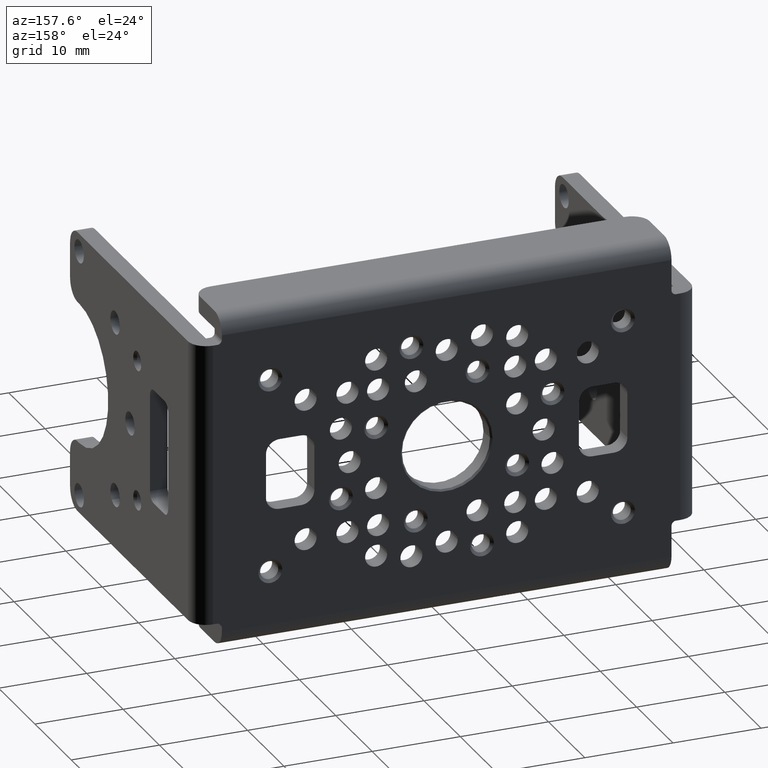
[diagram: clean part render]
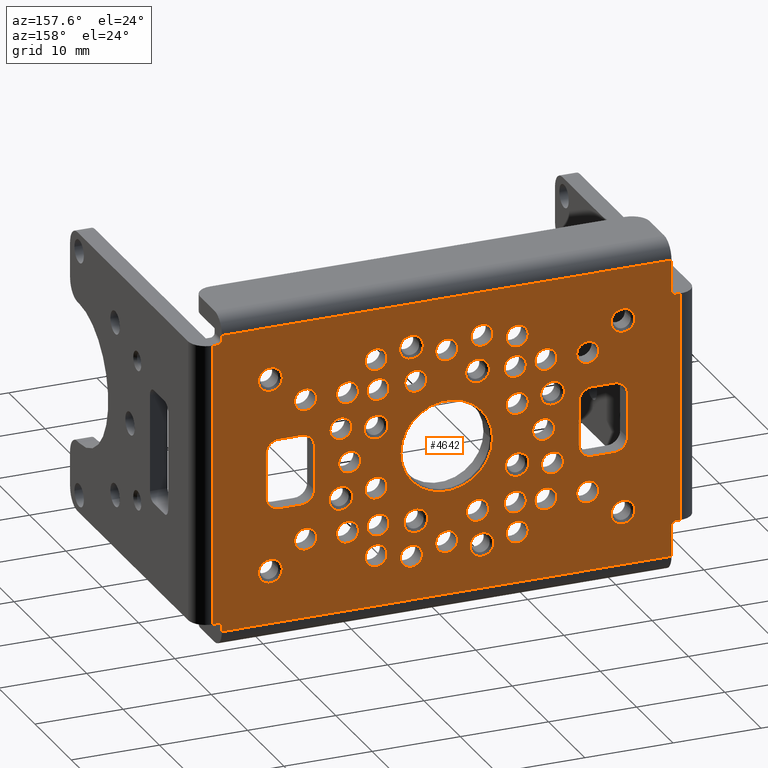
[diagram: same view with one face highlighted and labeled with its STEP entity id]
A machine part, auxiliary view. The second image highlights one B-rep face of the part: STEP entity #4642.
In plain terms, the highlighted planar face has unit normal (0, -1, 0).
Its self-contained STEP definition (entity closure, byte-faithful):
#741=DIRECTION('',(0.E0,0.E0,-1.E0));
#742=VECTOR('',#741,2.6E1);
#743=CARTESIAN_POINT('',(-2.65E1,2.E0,1.3E1));
#744=LINE('',#743,#742);
#755=DIRECTION('',(0.E0,0.E0,1.E0));
#756=VECTOR('',#755,5.E-1);
#757=CARTESIAN_POINT('',(2.55E1,2.E0,-1.7E1));
#758=LINE('',#757,#756);
#759=DIRECTION('',(-1.E0,0.E0,0.E0));
#760=VECTOR('',#759,5.E-1);
#761=CARTESIAN_POINT('',(2.65E1,2.E0,-1.6E1));
#762=LINE('',#761,#760);
#763=DIRECTION('',(-1.E0,0.E0,0.E0));
#764=VECTOR('',#763,5.E-1);
#765=CARTESIAN_POINT('',(2.65E1,2.E0,1.6E1));
#766=LINE('',#765,#764);
#767=DIRECTION('',(0.E0,0.E0,-1.E0));
#768=VECTOR('',#767,5.E-1);
#769=CARTESIAN_POINT('',(2.55E1,2.E0,1.7E1));
#770=LINE('',#769,#768);
#771=DIRECTION('',(0.E0,0.E0,-1.E0));
#772=VECTOR('',#771,3.5E0);
#773=CARTESIAN_POINT('',(-2.55E1,2.E0,1.7E1));
#774=LINE('',#773,#772);
#775=DIRECTION('',(1.E0,0.E0,0.E0));
#776=VECTOR('',#775,5.E-1);
#777=CARTESIAN_POINT('',(-2.65E1,2.E0,1.3E1));
#778=LINE('',#777,#776);
#779=DIRECTION('',(1.E0,0.E0,0.E0));
#780=VECTOR('',#779,5.E-1);
#781=CARTESIAN_POINT('',(-2.65E1,2.E0,-1.3E1));
#782=LINE('',#781,#780);
#783=DIRECTION('',(0.E0,0.E0,1.E0));
#784=VECTOR('',#783,3.5E0);
#785=CARTESIAN_POINT('',(-2.55E1,2.E0,-1.7E1));
#786=LINE('',#785,#784);
#787=DIRECTION('',(0.E0,0.E0,-1.E0));
#788=VECTOR('',#787,5.E0);
#789=CARTESIAN_POINT('',(-1.5E1,2.E0,2.5E0));
#790=LINE('',#789,#788);
#791=DIRECTION('',(-1.E0,0.E0,0.E0));
#792=VECTOR('',#791,2.5E0);
#793=CARTESIAN_POINT('',(-1.65E1,2.E0,-4.E0));
#794=LINE('',#793,#792);
#795=DIRECTION('',(0.E0,0.E0,1.E0));
#796=VECTOR('',#795,5.E0);
#797=CARTESIAN_POINT('',(-2.05E1,2.E0,-2.5E0));
#798=LINE('',#797,#796);
#799=DIRECTION('',(1.E0,0.E0,0.E0));
#800=VECTOR('',#799,2.5E0);
#801=CARTESIAN_POINT('',(-1.9E1,2.E0,4.E0));
#802=LINE('',#801,#800);
#803=DIRECTION('',(0.E0,0.E0,1.E0));
#804=VECTOR('',#803,5.E0);
#805=CARTESIAN_POINT('',(2.05E1,2.E0,-2.5E0));
#806=LINE('',#805,#804);
#807=DIRECTION('',(1.E0,0.E0,0.E0));
#808=VECTOR('',#807,2.5E0);
#809=CARTESIAN_POINT('',(1.65E1,2.E0,-4.E0));
#810=LINE('',#809,#808);
#811=DIRECTION('',(0.E0,0.E0,-1.E0));
#812=VECTOR('',#811,5.E0);
#813=CARTESIAN_POINT('',(1.5E1,2.E0,2.5E0));
#814=LINE('',#813,#812);
#815=DIRECTION('',(-1.E0,0.E0,0.E0));
#816=VECTOR('',#815,2.5E0);
#817=CARTESIAN_POINT('',(1.9E1,2.E0,4.E0));
#818=LINE('',#817,#816);
#819=CARTESIAN_POINT('',(0.E0,2.E0,-1.1E1));
#820=DIRECTION('',(0.E0,-1.E0,0.E0));
#821=DIRECTION('',(1.E0,0.E0,0.E0));
#822=AXIS2_PLACEMENT_3D('',#819,#820,#821);
#824=CARTESIAN_POINT('',(0.E0,2.E0,-1.1E1));
#825=DIRECTION('',(0.E0,-1.E0,0.E0));
#826=DIRECTION('',(-1.E0,0.E0,0.E0));
#827=AXIS2_PLACEMENT_3D('',#824,#825,#826);
#829=CARTESIAN_POINT('',(7.778174593052E0,2.E0,-7.778174593052E0));
#830=DIRECTION('',(0.E0,-1.E0,0.E0));
#831=DIRECTION('',(7.071067811865E-1,0.E0,7.071067811865E-1));
#832=AXIS2_PLACEMENT_3D('',#829,#830,#831);
#834=CARTESIAN_POINT('',(7.778174593052E0,2.E0,-7.778174593052E0));
#835=DIRECTION('',(0.E0,-1.E0,0.E0));
#836=DIRECTION('',(-7.071067811865E-1,0.E0,-7.071067811865E-1));
#837=AXIS2_PLACEMENT_3D('',#834,#835,#836);
#839=CARTESIAN_POINT('',(1.1E1,2.E0,0.E0));
#840=DIRECTION('',(0.E0,-1.E0,0.E0));
#841=DIRECTION('',(0.E0,0.E0,1.E0));
#842=AXIS2_PLACEMENT_3D('',#839,#840,#841);
#844=CARTESIAN_POINT('',(1.1E1,2.E0,0.E0));
#845=DIRECTION('',(0.E0,-1.E0,0.E0));
#846=DIRECTION('',(0.E0,0.E0,-1.E0));
#847=AXIS2_PLACEMENT_3D('',#844,#845,#846);
#849=CARTESIAN_POINT('',(7.778174593052E0,2.E0,7.778174593052E0));
#850=DIRECTION('',(0.E0,-1.E0,0.E0));
#851=DIRECTION('',(-7.071067811865E-1,0.E0,7.071067811865E-1));
#852=AXIS2_PLACEMENT_3D('',#849,#850,#851);
#854=CARTESIAN_POINT('',(7.778174593052E0,2.E0,7.778174593052E0));
#855=DIRECTION('',(0.E0,-1.E0,0.E0));
#856=DIRECTION('',(7.071067811865E-1,0.E0,-7.071067811865E-1));
#857=AXIS2_PLACEMENT_3D('',#854,#855,#856);
#859=CARTESIAN_POINT('',(0.E0,2.E0,1.1E1));
#860=DIRECTION('',(0.E0,-1.E0,0.E0));
#861=DIRECTION('',(-1.E0,0.E0,0.E0));
#862=AXIS2_PLACEMENT_3D('',#859,#860,#861);
#864=CARTESIAN_POINT('',(0.E0,2.E0,1.1E1));
#865=DIRECTION('',(0.E0,-1.E0,0.E0));
#866=DIRECTION('',(1.E0,0.E0,0.E0));
#867=AXIS2_PLACEMENT_3D('',#864,#865,#866);
#869=CARTESIAN_POINT('',(-7.778174593052E0,2.E0,7.778174593052E0));
#870=DIRECTION('',(0.E0,-1.E0,0.E0));
#871=DIRECTION('',(-7.071067811865E-1,0.E0,-7.071067811865E-1));
#872=AXIS2_PLACEMENT_3D('',#869,#870,#871);
#874=CARTESIAN_POINT('',(-7.778174593052E0,2.E0,7.778174593052E0));
#875=DIRECTION('',(0.E0,-1.E0,0.E0));
#876=DIRECTION('',(7.071067811865E-1,0.E0,7.071067811865E-1));
#877=AXIS2_PLACEMENT_3D('',#874,#875,#876);
#879=CARTESIAN_POINT('',(-1.1E1,2.E0,0.E0));
#880=DIRECTION('',(0.E0,-1.E0,0.E0));
#881=DIRECTION('',(0.E0,0.E0,-1.E0));
#882=AXIS2_PLACEMENT_3D('',#879,#880,#881);
#884=CARTESIAN_POINT('',(-1.1E1,2.E0,0.E0));
#885=DIRECTION('',(0.E0,-1.E0,0.E0));
#886=DIRECTION('',(0.E0,0.E0,1.E0));
#887=AXIS2_PLACEMENT_3D('',#884,#885,#886);
#889=CARTESIAN_POINT('',(-7.778174593052E0,2.E0,-7.778174593052E0));
#890=DIRECTION('',(0.E0,-1.E0,0.E0));
#891=DIRECTION('',(7.071067811865E-1,0.E0,-7.071067811865E-1));
#892=AXIS2_PLACEMENT_3D('',#889,#890,#891);
#894=CARTESIAN_POINT('',(-7.778174593052E0,2.E0,-7.778174593052E0));
#895=DIRECTION('',(0.E0,-1.E0,0.E0));
#896=DIRECTION('',(-7.071067811865E-1,0.E0,7.071067811865E-1));
#897=AXIS2_PLACEMENT_3D('',#894,#895,#896);
#899=CARTESIAN_POINT('',(3.5E0,2.E0,-8.E0));
#900=DIRECTION('',(0.E0,1.E0,0.E0));
#901=DIRECTION('',(1.E0,0.E0,0.E0));
#902=AXIS2_PLACEMENT_3D('',#899,#900,#901);
#904=CARTESIAN_POINT('',(3.5E0,2.E0,-8.E0));
#905=DIRECTION('',(0.E0,1.E0,0.E0));
#906=DIRECTION('',(-1.E0,0.E0,0.E0));
#907=AXIS2_PLACEMENT_3D('',#904,#905,#906);
#909=CARTESIAN_POINT('',(-3.5E0,2.E0,-8.E0));
#910=DIRECTION('',(0.E0,-1.E0,0.E0));
#911=DIRECTION('',(1.E0,0.E0,0.E0));
#912=AXIS2_PLACEMENT_3D('',#909,#910,#911);
#914=CARTESIAN_POINT('',(-3.5E0,2.E0,-8.E0));
#915=DIRECTION('',(0.E0,-1.E0,0.E0));
#916=DIRECTION('',(-1.E0,0.E0,0.E0));
#917=AXIS2_PLACEMENT_3D('',#914,#915,#916);
#919=CARTESIAN_POINT('',(8.E0,2.E0,3.5E0));
#920=DIRECTION('',(0.E0,1.E0,0.E0));
#921=DIRECTION('',(0.E0,0.E0,1.E0));
#922=AXIS2_PLACEMENT_3D('',#919,#920,#921);
#924=CARTESIAN_POINT('',(8.E0,2.E0,3.5E0));
#925=DIRECTION('',(0.E0,1.E0,0.E0));
#926=DIRECTION('',(0.E0,0.E0,-1.E0));
#927=AXIS2_PLACEMENT_3D('',#924,#925,#926);
#929=CARTESIAN_POINT('',(8.E0,2.E0,-3.5E0));
#930=DIRECTION('',(0.E0,-1.E0,0.E0));
#931=DIRECTION('',(0.E0,0.E0,1.E0));
#932=AXIS2_PLACEMENT_3D('',#929,#930,#931);
#934=CARTESIAN_POINT('',(8.E0,2.E0,-3.5E0));
#935=DIRECTION('',(0.E0,-1.E0,0.E0));
#936=DIRECTION('',(0.E0,0.E0,-1.E0));
#937=AXIS2_PLACEMENT_3D('',#934,#935,#936);
#939=CARTESIAN_POINT('',(-3.5E0,2.E0,8.E0));
#940=DIRECTION('',(0.E0,1.E0,0.E0));
#941=DIRECTION('',(-1.E0,0.E0,0.E0));
#942=AXIS2_PLACEMENT_3D('',#939,#940,#941);
#944=CARTESIAN_POINT('',(-3.5E0,2.E0,8.E0));
#945=DIRECTION('',(0.E0,1.E0,0.E0));
#946=DIRECTION('',(1.E0,0.E0,0.E0));
#947=AXIS2_PLACEMENT_3D('',#944,#945,#946);
#949=CARTESIAN_POINT('',(3.5E0,2.E0,8.E0));
#950=DIRECTION('',(0.E0,-1.E0,0.E0));
#951=DIRECTION('',(-1.E0,0.E0,0.E0));
#952=AXIS2_PLACEMENT_3D('',#949,#950,#951);
#954=CARTESIAN_POINT('',(3.5E0,2.E0,8.E0));
#955=DIRECTION('',(0.E0,-1.E0,0.E0));
#956=DIRECTION('',(1.E0,0.E0,0.E0));
#957=AXIS2_PLACEMENT_3D('',#954,#955,#956);
#959=CARTESIAN_POINT('',(-8.E0,2.E0,-3.5E0));
#960=DIRECTION('',(0.E0,1.E0,0.E0));
#961=DIRECTION('',(0.E0,0.E0,-1.E0));
#962=AXIS2_PLACEMENT_3D('',#959,#960,#961);
#964=CARTESIAN_POINT('',(-8.E0,2.E0,-3.5E0));
#965=DIRECTION('',(0.E0,1.E0,0.E0));
#966=DIRECTION('',(0.E0,0.E0,1.E0));
#967=AXIS2_PLACEMENT_3D('',#964,#965,#966);
#969=CARTESIAN_POINT('',(-8.E0,2.E0,3.5E0));
#970=DIRECTION('',(0.E0,-1.E0,0.E0));
#971=DIRECTION('',(0.E0,0.E0,-1.E0));
#972=AXIS2_PLACEMENT_3D('',#969,#970,#971);
#974=CARTESIAN_POINT('',(-8.E0,2.E0,3.5E0));
#975=DIRECTION('',(0.E0,-1.E0,0.E0));
#976=DIRECTION('',(0.E0,0.E0,1.E0));
#977=AXIS2_PLACEMENT_3D('',#974,#975,#976);
#979=CARTESIAN_POINT('',(1.6E1,2.E0,-8.E0));
#980=DIRECTION('',(0.E0,-1.E0,0.E0));
#981=DIRECTION('',(1.E0,0.E0,0.E0));
#982=AXIS2_PLACEMENT_3D('',#979,#980,#981);
#984=CARTESIAN_POINT('',(1.6E1,2.E0,-8.E0));
#985=DIRECTION('',(0.E0,-1.E0,0.E0));
#986=DIRECTION('',(-1.E0,0.E0,0.E0));
#987=AXIS2_PLACEMENT_3D('',#984,#985,#986);
#989=CARTESIAN_POINT('',(1.6E1,2.E0,8.E0));
#990=DIRECTION('',(0.E0,1.E0,0.E0));
#991=DIRECTION('',(1.E0,0.E0,0.E0));
#992=AXIS2_PLACEMENT_3D('',#989,#990,#991);
#994=CARTESIAN_POINT('',(1.6E1,2.E0,8.E0));
#995=DIRECTION('',(0.E0,1.E0,0.E0));
#996=DIRECTION('',(-1.E0,0.E0,0.E0));
#997=AXIS2_PLACEMENT_3D('',#994,#995,#996);
#999=CARTESIAN_POINT('',(-1.6E1,2.E0,-8.E0));
#1000=DIRECTION('',(0.E0,1.E0,0.E0));
#1001=DIRECTION('',(-1.E0,0.E0,0.E0));
#1002=AXIS2_PLACEMENT_3D('',#999,#1000,#1001);
#1004=CARTESIAN_POINT('',(-1.6E1,2.E0,-8.E0));
#1005=DIRECTION('',(0.E0,1.E0,0.E0));
#1006=DIRECTION('',(1.E0,0.E0,0.E0));
#1007=AXIS2_PLACEMENT_3D('',#1004,#1005,#1006);
#1009=CARTESIAN_POINT('',(-1.6E1,2.E0,8.E0));
#1010=DIRECTION('',(0.E0,-1.E0,0.E0));
#1011=DIRECTION('',(-1.E0,0.E0,0.E0));
#1012=AXIS2_PLACEMENT_3D('',#1009,#1010,#1011);
#1014=CARTESIAN_POINT('',(-1.6E1,2.E0,8.E0));
#1015=DIRECTION('',(0.E0,-1.E0,0.E0));
#1016=DIRECTION('',(1.E0,0.E0,0.E0));
#1017=AXIS2_PLACEMENT_3D('',#1014,#1015,#1016);
#1019=CARTESIAN_POINT('',(8.E0,2.E0,-1.125E1));
#1020=DIRECTION('',(0.E0,-1.E0,0.E0));
#1021=DIRECTION('',(1.E0,0.E0,0.E0));
#1022=AXIS2_PLACEMENT_3D('',#1019,#1020,#1021);
#1024=CARTESIAN_POINT('',(8.E0,2.E0,-1.125E1));
#1025=DIRECTION('',(0.E0,-1.E0,0.E0));
#1026=DIRECTION('',(-1.E0,0.E0,0.E0));
#1027=AXIS2_PLACEMENT_3D('',#1024,#1025,#1026);
#1029=CARTESIAN_POINT('',(-8.E0,2.E0,-1.125E1));
#1030=DIRECTION('',(0.E0,1.E0,0.E0));
#1031=DIRECTION('',(-1.E0,0.E0,0.E0));
#1032=AXIS2_PLACEMENT_3D('',#1029,#1030,#1031);
#1034=CARTESIAN_POINT('',(-8.E0,2.E0,-1.125E1));
#1035=DIRECTION('',(0.E0,1.E0,0.E0));
#1036=DIRECTION('',(1.E0,0.E0,0.E0));
#1037=AXIS2_PLACEMENT_3D('',#1034,#1035,#1036);
#1039=CARTESIAN_POINT('',(1.125E1,2.E0,8.E0));
#1040=DIRECTION('',(0.E0,-1.E0,0.E0));
#1041=DIRECTION('',(0.E0,0.E0,1.E0));
#1042=AXIS2_PLACEMENT_3D('',#1039,#1040,#1041);
#1044=CARTESIAN_POINT('',(1.125E1,2.E0,8.E0));
#1045=DIRECTION('',(0.E0,-1.E0,0.E0));
#1046=DIRECTION('',(0.E0,0.E0,-1.E0));
#1047=AXIS2_PLACEMENT_3D('',#1044,#1045,#1046);
#1049=CARTESIAN_POINT('',(1.125E1,2.E0,-8.E0));
#1050=DIRECTION('',(0.E0,1.E0,0.E0));
#1051=DIRECTION('',(0.E0,0.E0,-1.E0));
#1052=AXIS2_PLACEMENT_3D('',#1049,#1050,#1051);
#1054=CARTESIAN_POINT('',(1.125E1,2.E0,-8.E0));
#1055=DIRECTION('',(0.E0,1.E0,0.E0));
#1056=DIRECTION('',(0.E0,0.E0,1.E0));
#1057=AXIS2_PLACEMENT_3D('',#1054,#1055,#1056);
#1059=CARTESIAN_POINT('',(-8.E0,2.E0,1.125E1));
#1060=DIRECTION('',(0.E0,-1.E0,0.E0));
#1061=DIRECTION('',(-1.E0,0.E0,0.E0));
#1062=AXIS2_PLACEMENT_3D('',#1059,#1060,#1061);
#1064=CARTESIAN_POINT('',(-8.E0,2.E0,1.125E1));
#1065=DIRECTION('',(0.E0,-1.E0,0.E0));
#1066=DIRECTION('',(1.E0,0.E0,0.E0));
#1067=AXIS2_PLACEMENT_3D('',#1064,#1065,#1066);
#1069=CARTESIAN_POINT('',(8.E0,2.E0,1.125E1));
#1070=DIRECTION('',(0.E0,1.E0,0.E0));
#1071=DIRECTION('',(1.E0,0.E0,0.E0));
#1072=AXIS2_PLACEMENT_3D('',#1069,#1070,#1071);
#1074=CARTESIAN_POINT('',(8.E0,2.E0,1.125E1));
#1075=DIRECTION('',(0.E0,1.E0,0.E0));
#1076=DIRECTION('',(-1.E0,0.E0,0.E0));
#1077=AXIS2_PLACEMENT_3D('',#1074,#1075,#1076);
#1079=CARTESIAN_POINT('',(-1.125E1,2.E0,-8.E0));
#1080=DIRECTION('',(0.E0,-1.E0,0.E0));
#1081=DIRECTION('',(0.E0,0.E0,-1.E0));
#1082=AXIS2_PLACEMENT_3D('',#1079,#1080,#1081);
#1084=CARTESIAN_POINT('',(-1.125E1,2.E0,-8.E0));
#1085=DIRECTION('',(0.E0,-1.E0,0.E0));
#1086=DIRECTION('',(0.E0,0.E0,1.E0));
#1087=AXIS2_PLACEMENT_3D('',#1084,#1085,#1086);
#1089=CARTESIAN_POINT('',(-1.125E1,2.E0,8.E0));
#1090=DIRECTION('',(0.E0,1.E0,0.E0));
#1091=DIRECTION('',(0.E0,0.E0,1.E0));
#1092=AXIS2_PLACEMENT_3D('',#1089,#1090,#1091);
#1094=CARTESIAN_POINT('',(-1.125E1,2.E0,8.E0));
#1095=DIRECTION('',(0.E0,1.E0,0.E0));
#1096=DIRECTION('',(0.E0,0.E0,-1.E0));
#1097=AXIS2_PLACEMENT_3D('',#1094,#1095,#1096);
#1099=CARTESIAN_POINT('',(0.E0,2.E0,0.E0));
#1100=DIRECTION('',(0.E0,-1.E0,0.E0));
#1101=DIRECTION('',(-1.E0,0.E0,0.E0));
#1102=AXIS2_PLACEMENT_3D('',#1099,#1100,#1101);
#1104=CARTESIAN_POINT('',(0.E0,2.E0,-2.886579864025E-14));
#1105=DIRECTION('',(0.E0,-1.E0,0.E0));
#1106=DIRECTION('',(1.E0,0.E0,0.E0));
#1107=AXIS2_PLACEMENT_3D('',#1104,#1105,#1106);
#1109=CARTESIAN_POINT('',(1.2E1,2.E0,-4.E0));
#1110=DIRECTION('',(0.E0,1.E0,0.E0));
#1111=DIRECTION('',(1.E0,0.E0,0.E0));
#1112=AXIS2_PLACEMENT_3D('',#1109,#1110,#1111);
#1114=CARTESIAN_POINT('',(1.2E1,2.E0,-4.E0));
#1115=DIRECTION('',(0.E0,1.E0,0.E0));
#1116=DIRECTION('',(-1.E0,0.E0,0.E0));
#1117=AXIS2_PLACEMENT_3D('',#1114,#1115,#1116);
#1119=CARTESIAN_POINT('',(4.E0,2.E0,1.2E1));
#1120=DIRECTION('',(0.E0,1.E0,0.E0));
#1121=DIRECTION('',(0.E0,0.E0,1.E0));
#1122=AXIS2_PLACEMENT_3D('',#1119,#1120,#1121);
#1124=CARTESIAN_POINT('',(4.E0,2.E0,1.2E1));
#1125=DIRECTION('',(0.E0,1.E0,0.E0));
#1126=DIRECTION('',(0.E0,0.E0,-1.E0));
#1127=AXIS2_PLACEMENT_3D('',#1124,#1125,#1126);
#1129=CARTESIAN_POINT('',(-1.2E1,2.E0,4.E0));
#1130=DIRECTION('',(0.E0,1.E0,0.E0));
#1131=DIRECTION('',(-1.E0,0.E0,0.E0));
#1132=AXIS2_PLACEMENT_3D('',#1129,#1130,#1131);
#1134=CARTESIAN_POINT('',(-1.2E1,2.E0,4.E0));
#1135=DIRECTION('',(0.E0,1.E0,0.E0));
#1136=DIRECTION('',(1.E0,0.E0,0.E0));
#1137=AXIS2_PLACEMENT_3D('',#1134,#1135,#1136);
#1139=CARTESIAN_POINT('',(-4.E0,2.E0,-1.2E1));
#1140=DIRECTION('',(0.E0,1.E0,0.E0));
#1141=DIRECTION('',(0.E0,0.E0,-1.E0));
#1142=AXIS2_PLACEMENT_3D('',#1139,#1140,#1141);
#1144=CARTESIAN_POINT('',(-4.E0,2.E0,-1.2E1));
#1145=DIRECTION('',(0.E0,1.E0,0.E0));
#1146=DIRECTION('',(0.E0,0.E0,1.E0));
#1147=AXIS2_PLACEMENT_3D('',#1144,#1145,#1146);
#1149=CARTESIAN_POINT('',(1.2E1,2.E0,4.E0));
#1150=DIRECTION('',(0.E0,-1.E0,0.E0));
#1151=DIRECTION('',(1.E0,0.E0,0.E0));
#1152=AXIS2_PLACEMENT_3D('',#1149,#1150,#1151);
#1154=CARTESIAN_POINT('',(1.2E1,2.E0,4.E0));
#1155=DIRECTION('',(0.E0,-1.E0,0.E0));
#1156=DIRECTION('',(-1.E0,0.E0,0.E0));
#1157=AXIS2_PLACEMENT_3D('',#1154,#1155,#1156);
#1159=CARTESIAN_POINT('',(-4.E0,2.E0,1.2E1));
#1160=DIRECTION('',(0.E0,-1.E0,0.E0));
#1161=DIRECTION('',(0.E0,0.E0,1.E0));
#1162=AXIS2_PLACEMENT_3D('',#1159,#1160,#1161);
#1164=CARTESIAN_POINT('',(-4.E0,2.E0,1.2E1));
#1165=DIRECTION('',(0.E0,-1.E0,0.E0));
#1166=DIRECTION('',(0.E0,0.E0,-1.E0));
#1167=AXIS2_PLACEMENT_3D('',#1164,#1165,#1166);
#1169=CARTESIAN_POINT('',(-1.2E1,2.E0,-4.E0));
#1170=DIRECTION('',(0.E0,-1.E0,0.E0));
#1171=DIRECTION('',(-1.E0,0.E0,0.E0));
#1172=AXIS2_PLACEMENT_3D('',#1169,#1170,#1171);
#1174=CARTESIAN_POINT('',(-1.2E1,2.E0,-4.E0));
#1175=DIRECTION('',(0.E0,-1.E0,0.E0));
#1176=DIRECTION('',(1.E0,0.E0,0.E0));
#1177=AXIS2_PLACEMENT_3D('',#1174,#1175,#1176);
#1179=CARTESIAN_POINT('',(4.E0,2.E0,-1.2E1));
#1180=DIRECTION('',(0.E0,-1.E0,0.E0));
#1181=DIRECTION('',(0.E0,0.E0,-1.E0));
#1182=AXIS2_PLACEMENT_3D('',#1179,#1180,#1181);
#1184=CARTESIAN_POINT('',(4.E0,2.E0,-1.2E1));
#1185=DIRECTION('',(0.E0,-1.E0,0.E0));
#1186=DIRECTION('',(0.E0,0.E0,1.E0));
#1187=AXIS2_PLACEMENT_3D('',#1184,#1185,#1186);
#1189=CARTESIAN_POINT('',(-2.E1,2.E0,-1.1E1));
#1190=DIRECTION('',(0.E0,1.E0,0.E0));
#1191=DIRECTION('',(1.E0,0.E0,0.E0));
#1192=AXIS2_PLACEMENT_3D('',#1189,#1190,#1191);
#1194=CARTESIAN_POINT('',(-2.E1,2.E0,-1.1E1));
#1195=DIRECTION('',(0.E0,1.E0,0.E0));
#1196=DIRECTION('',(-1.E0,0.E0,0.E0));
#1197=AXIS2_PLACEMENT_3D('',#1194,#1195,#1196);
#1199=CARTESIAN_POINT('',(-2.E1,2.E0,1.1E1));
#1200=DIRECTION('',(0.E0,-1.E0,0.E0));
#1201=DIRECTION('',(1.E0,0.E0,0.E0));
#1202=AXIS2_PLACEMENT_3D('',#1199,#1200,#1201);
#1204=CARTESIAN_POINT('',(-2.E1,2.E0,1.1E1));
#1205=DIRECTION('',(0.E0,-1.E0,0.E0));
#1206=DIRECTION('',(-1.E0,0.E0,0.E0));
#1207=AXIS2_PLACEMENT_3D('',#1204,#1205,#1206);
#1209=CARTESIAN_POINT('',(2.E1,2.E0,-1.1E1));
#1210=DIRECTION('',(0.E0,-1.E0,0.E0));
#1211=DIRECTION('',(-1.E0,0.E0,0.E0));
#1212=AXIS2_PLACEMENT_3D('',#1209,#1210,#1211);
#1214=CARTESIAN_POINT('',(2.E1,2.E0,-1.1E1));
#1215=DIRECTION('',(0.E0,-1.E0,0.E0));
#1216=DIRECTION('',(1.E0,0.E0,0.E0));
#1217=AXIS2_PLACEMENT_3D('',#1214,#1215,#1216);
#1219=CARTESIAN_POINT('',(2.E1,2.E0,1.1E1));
#1220=DIRECTION('',(0.E0,1.E0,0.E0));
#1221=DIRECTION('',(-1.E0,0.E0,0.E0));
#1222=AXIS2_PLACEMENT_3D('',#1219,#1220,#1221);
#1224=CARTESIAN_POINT('',(2.E1,2.E0,1.1E1));
#1225=DIRECTION('',(0.E0,1.E0,0.E0));
#1226=DIRECTION('',(1.E0,0.E0,0.E0));
#1227=AXIS2_PLACEMENT_3D('',#1224,#1225,#1226);
#1238=CARTESIAN_POINT('',(2.6E1,2.E0,-1.65E1));
#1239=DIRECTION('',(0.E0,-1.E0,0.E0));
#1240=DIRECTION('',(0.E0,0.E0,1.E0));
#1241=AXIS2_PLACEMENT_3D('',#1238,#1239,#1240);
#1702=CARTESIAN_POINT('',(2.6E1,2.E0,1.65E1));
#1703=DIRECTION('',(0.E0,-1.E0,0.E0));
#1704=DIRECTION('',(-1.E0,0.E0,0.E0));
#1705=AXIS2_PLACEMENT_3D('',#1702,#1703,#1704);
#1791=CARTESIAN_POINT('',(-2.6E1,2.E0,1.35E1));
#1792=DIRECTION('',(0.E0,-1.E0,0.E0));
#1793=DIRECTION('',(0.E0,0.E0,-1.E0));
#1794=AXIS2_PLACEMENT_3D('',#1791,#1792,#1793);
#1873=DIRECTION('',(-1.E0,0.E0,0.E0));
#1874=VECTOR('',#1873,5.1E1);
#1875=CARTESIAN_POINT('',(2.55E1,2.E0,1.7E1));
#1876=LINE('',#1875,#1874);
#1891=DIRECTION('',(0.E0,0.E0,1.E0));
#1892=VECTOR('',#1891,3.2E1);
#1893=CARTESIAN_POINT('',(2.65E1,2.E0,-1.6E1));
#1894=LINE('',#1893,#1892);
#1965=DIRECTION('',(1.E0,0.E0,0.E0));
#1966=VECTOR('',#1965,5.1E1);
#1967=CARTESIAN_POINT('',(-2.55E1,2.E0,-1.7E1));
#1968=LINE('',#1967,#1966);
#2060=CARTESIAN_POINT('',(-2.6E1,2.E0,-1.35E1));
#2061=DIRECTION('',(0.E0,-1.E0,0.E0));
#2062=DIRECTION('',(1.E0,0.E0,0.E0));
#2063=AXIS2_PLACEMENT_3D('',#2060,#2061,#2062);
#2090=CARTESIAN_POINT('',(-1.65E1,2.E0,-2.5E0));
#2091=DIRECTION('',(0.E0,-1.E0,0.E0));
#2092=DIRECTION('',(0.E0,0.E0,-1.E0));
#2093=AXIS2_PLACEMENT_3D('',#2090,#2091,#2092);
#2108=CARTESIAN_POINT('',(-1.9E1,2.E0,-2.5E0));
#2109=DIRECTION('',(0.E0,-1.E0,0.E0));
#2110=DIRECTION('',(-1.E0,0.E0,0.E0));
#2111=AXIS2_PLACEMENT_3D('',#2108,#2109,#2110);
#2126=CARTESIAN_POINT('',(-1.9E1,2.E0,2.5E0));
#2127=DIRECTION('',(0.E0,-1.E0,0.E0));
#2128=DIRECTION('',(0.E0,0.E0,1.E0));
#2129=AXIS2_PLACEMENT_3D('',#2126,#2127,#2128);
#2144=CARTESIAN_POINT('',(-1.65E1,2.E0,2.5E0));
#2145=DIRECTION('',(0.E0,-1.E0,0.E0));
#2146=DIRECTION('',(1.E0,0.E0,0.E0));
#2147=AXIS2_PLACEMENT_3D('',#2144,#2145,#2146);
#2162=CARTESIAN_POINT('',(1.9E1,2.E0,-2.5E0));
#2163=DIRECTION('',(0.E0,-1.E0,0.E0));
#2164=DIRECTION('',(0.E0,0.E0,-1.E0));
#2165=AXIS2_PLACEMENT_3D('',#2162,#2163,#2164);
#2180=CARTESIAN_POINT('',(1.65E1,2.E0,-2.5E0));
#2181=DIRECTION('',(0.E0,-1.E0,0.E0));
#2182=DIRECTION('',(-1.E0,0.E0,0.E0));
#2183=AXIS2_PLACEMENT_3D('',#2180,#2181,#2182);
#2198=CARTESIAN_POINT('',(1.65E1,2.E0,2.5E0));
#2199=DIRECTION('',(0.E0,-1.E0,0.E0));
#2200=DIRECTION('',(0.E0,0.E0,1.E0));
#2201=AXIS2_PLACEMENT_3D('',#2198,#2199,#2200);
#2216=CARTESIAN_POINT('',(1.9E1,2.E0,2.5E0));
#2217=DIRECTION('',(0.E0,-1.E0,0.E0));
#2218=DIRECTION('',(1.E0,0.E0,0.E0));
#2219=AXIS2_PLACEMENT_3D('',#2216,#2217,#2218);
#3151=CARTESIAN_POINT('',(-2.65E1,2.E0,1.3E1));
#3152=CARTESIAN_POINT('',(-2.65E1,2.E0,-1.3E1));
#3153=VERTEX_POINT('',#3151);
#3154=VERTEX_POINT('',#3152);
#3155=CARTESIAN_POINT('',(2.65E1,2.E0,-1.6E1));
#3156=CARTESIAN_POINT('',(2.65E1,2.E0,1.6E1));
#3157=VERTEX_POINT('',#3155);
#3158=VERTEX_POINT('',#3156);
#3159=CARTESIAN_POINT('',(-2.55E1,2.E0,-1.7E1));
#3160=CARTESIAN_POINT('',(2.55E1,2.E0,-1.7E1));
#3161=VERTEX_POINT('',#3159);
#3162=VERTEX_POINT('',#3160);
#3163=CARTESIAN_POINT('',(2.55E1,2.E0,1.7E1));
#3164=CARTESIAN_POINT('',(-2.55E1,2.E0,1.7E1));
#3165=VERTEX_POINT('',#3163);
#3166=VERTEX_POINT('',#3164);
#3168=CARTESIAN_POINT('',(-2.6E1,2.E0,1.3E1));
#3170=VERTEX_POINT('',#3168);
#3172=CARTESIAN_POINT('',(-2.6E1,2.E0,-1.3E1));
#3174=VERTEX_POINT('',#3172);
#3177=CARTESIAN_POINT('',(-2.55E1,2.E0,1.35E1));
#3178=VERTEX_POINT('',#3177);
#3181=CARTESIAN_POINT('',(-2.55E1,2.E0,-1.35E1));
#3182=VERTEX_POINT('',#3181);
#3184=CARTESIAN_POINT('',(2.6E1,2.E0,1.6E1));
#3186=VERTEX_POINT('',#3184);
#3188=CARTESIAN_POINT('',(2.55E1,2.E0,1.65E1));
#3190=VERTEX_POINT('',#3188);
#3192=CARTESIAN_POINT('',(2.55E1,2.E0,-1.65E1));
#3194=VERTEX_POINT('',#3192);
#3196=CARTESIAN_POINT('',(2.6E1,2.E0,-1.6E1));
#3198=VERTEX_POINT('',#3196);
#3232=CARTESIAN_POINT('',(-1.9E1,2.E0,-4.E0));
#3234=VERTEX_POINT('',#3232);
#3236=CARTESIAN_POINT('',(-2.05E1,2.E0,-2.5E0));
#3238=VERTEX_POINT('',#3236);
#3240=CARTESIAN_POINT('',(-1.5E1,2.E0,-2.5E0));
#3242=VERTEX_POINT('',#3240);
#3244=CARTESIAN_POINT('',(-1.65E1,2.E0,-4.E0));
#3246=VERTEX_POINT('',#3244);
#3248=CARTESIAN_POINT('',(-1.65E1,2.E0,4.E0));
#3250=VERTEX_POINT('',#3248);
#3252=CARTESIAN_POINT('',(-1.5E1,2.E0,2.5E0));
#3254=VERTEX_POINT('',#3252);
#3256=CARTESIAN_POINT('',(-2.05E1,2.E0,2.5E0));
#3258=VERTEX_POINT('',#3256);
#3260=CARTESIAN_POINT('',(-1.9E1,2.E0,4.E0));
#3262=VERTEX_POINT('',#3260);
#3264=CARTESIAN_POINT('',(2.05E1,2.E0,-2.5E0));
#3266=VERTEX_POINT('',#3264);
#3268=CARTESIAN_POINT('',(1.9E1,2.E0,-4.E0));
#3270=VERTEX_POINT('',#3268);
#3272=CARTESIAN_POINT('',(1.65E1,2.E0,-4.E0));
#3274=VERTEX_POINT('',#3272);
#3276=CARTESIAN_POINT('',(1.5E1,2.E0,-2.5E0));
#3278=VERTEX_POINT('',#3276);
#3280=CARTESIAN_POINT('',(1.5E1,2.E0,2.5E0));
#3282=VERTEX_POINT('',#3280);
#3284=CARTESIAN_POINT('',(1.65E1,2.E0,4.E0));
#3286=VERTEX_POINT('',#3284);
#3288=CARTESIAN_POINT('',(1.9E1,2.E0,4.E0));
#3290=VERTEX_POINT('',#3288);
#3292=CARTESIAN_POINT('',(2.05E1,2.E0,2.5E0));
#3294=VERTEX_POINT('',#3292);
#3403=CARTESIAN_POINT('',(1.25E0,2.E0,-1.1E1));
#3404=CARTESIAN_POINT('',(-1.25E0,2.E0,-1.1E1));
#3405=VERTEX_POINT('',#3403);
#3406=VERTEX_POINT('',#3404);
#3411=CARTESIAN_POINT('',(8.662058069535E0,2.E0,-6.894291116569E0));
#3412=CARTESIAN_POINT('',(6.894291116569E0,2.E0,-8.662058069535E0));
#3413=VERTEX_POINT('',#3411);
#3414=VERTEX_POINT('',#3412);
#3419=CARTESIAN_POINT('',(1.1E1,2.E0,1.25E0));
#3420=CARTESIAN_POINT('',(1.1E1,2.E0,-1.25E0));
#3421=VERTEX_POINT('',#3419);
#3422=VERTEX_POINT('',#3420);
#3427=CARTESIAN_POINT('',(6.894291116569E0,2.E0,8.662058069535E0));
#3428=CARTESIAN_POINT('',(8.662058069535E0,2.E0,6.894291116569E0));
#3429=VERTEX_POINT('',#3427);
#3430=VERTEX_POINT('',#3428);
#3435=CARTESIAN_POINT('',(-1.25E0,2.E0,1.1E1));
#3436=CARTESIAN_POINT('',(1.25E0,2.E0,1.1E1));
#3437=VERTEX_POINT('',#3435);
#3438=VERTEX_POINT('',#3436);
#3443=CARTESIAN_POINT('',(-8.662058069535E0,2.E0,6.894291116569E0));
#3444=CARTESIAN_POINT('',(-6.894291116569E0,2.E0,8.662058069535E0));
#3445=VERTEX_POINT('',#3443);
#3446=VERTEX_POINT('',#3444);
#3451=CARTESIAN_POINT('',(-1.1E1,2.E0,-1.25E0));
#3452=CARTESIAN_POINT('',(-1.1E1,2.E0,1.25E0));
#3453=VERTEX_POINT('',#3451);
#3454=VERTEX_POINT('',#3452);
#3459=CARTESIAN_POINT('',(-6.894291116569E0,2.E0,-8.662058069535E0));
#3460=CARTESIAN_POINT('',(-8.662058069535E0,2.E0,-6.894291116569E0));
#3461=VERTEX_POINT('',#3459);
#3462=VERTEX_POINT('',#3460);
#3471=CARTESIAN_POINT('',(4.85E0,2.E0,-8.E0));
#3472=CARTESIAN_POINT('',(2.15E0,2.E0,-8.E0));
#3473=VERTEX_POINT('',#3471);
#3474=VERTEX_POINT('',#3472);
#3479=CARTESIAN_POINT('',(-2.25E0,2.E0,-8.E0));
#3480=CARTESIAN_POINT('',(-4.75E0,2.E0,-8.E0));
#3481=VERTEX_POINT('',#3479);
#3482=VERTEX_POINT('',#3480);
#3489=CARTESIAN_POINT('',(8.E0,2.E0,4.85E0));
#3490=VERTEX_POINT('',#3489);
#3493=CARTESIAN_POINT('',(8.E0,2.E0,2.15E0));
#3494=VERTEX_POINT('',#3493);
#3495=CARTESIAN_POINT('',(8.E0,2.E0,-2.25E0));
#3497=VERTEX_POINT('',#3495);
#3499=CARTESIAN_POINT('',(8.E0,2.E0,-4.75E0));
#3501=VERTEX_POINT('',#3499);
#3509=CARTESIAN_POINT('',(-4.85E0,2.E0,8.E0));
#3510=VERTEX_POINT('',#3509);
#3513=CARTESIAN_POINT('',(-2.15E0,2.E0,8.E0));
#3514=VERTEX_POINT('',#3513);
#3515=CARTESIAN_POINT('',(2.25E0,2.E0,8.E0));
#3517=VERTEX_POINT('',#3515);
#3519=CARTESIAN_POINT('',(4.75E0,2.E0,8.E0));
#3521=VERTEX_POINT('',#3519);
#3529=CARTESIAN_POINT('',(-8.E0,2.E0,-4.85E0));
#3530=VERTEX_POINT('',#3529);
#3533=CARTESIAN_POINT('',(-8.E0,2.E0,-2.15E0));
#3534=VERTEX_POINT('',#3533);
#3535=CARTESIAN_POINT('',(-8.E0,2.E0,2.25E0));
#3537=VERTEX_POINT('',#3535);
#3539=CARTESIAN_POINT('',(-8.E0,2.E0,4.75E0));
#3541=VERTEX_POINT('',#3539);
#3547=CARTESIAN_POINT('',(1.725E1,2.E0,-8.E0));
#3548=CARTESIAN_POINT('',(1.475E1,2.E0,-8.E0));
#3549=VERTEX_POINT('',#3547);
#3550=VERTEX_POINT('',#3548);
#3551=CARTESIAN_POINT('',(1.725E1,2.E0,8.E0));
#3553=VERTEX_POINT('',#3551);
#3555=CARTESIAN_POINT('',(1.475E1,2.E0,8.E0));
#3557=VERTEX_POINT('',#3555);
#3559=CARTESIAN_POINT('',(-1.725E1,2.E0,-8.E0));
#3561=VERTEX_POINT('',#3559);
#3563=CARTESIAN_POINT('',(-1.475E1,2.E0,-8.E0));
#3565=VERTEX_POINT('',#3563);
#3567=CARTESIAN_POINT('',(-1.725E1,2.E0,8.E0));
#3569=VERTEX_POINT('',#3567);
#3571=CARTESIAN_POINT('',(-1.475E1,2.E0,8.E0));
#3573=VERTEX_POINT('',#3571);
#3579=CARTESIAN_POINT('',(9.25E0,2.E0,-1.125E1));
#3580=CARTESIAN_POINT('',(6.75E0,2.E0,-1.125E1));
#3581=VERTEX_POINT('',#3579);
#3582=VERTEX_POINT('',#3580);
#3583=CARTESIAN_POINT('',(-9.25E0,2.E0,-1.125E1));
#3585=VERTEX_POINT('',#3583);
#3587=CARTESIAN_POINT('',(-6.75E0,2.E0,-1.125E1));
#3589=VERTEX_POINT('',#3587);
#3591=CARTESIAN_POINT('',(1.125E1,2.E0,9.25E0));
#3593=VERTEX_POINT('',#3591);
#3595=CARTESIAN_POINT('',(1.125E1,2.E0,6.75E0));
#3597=VERTEX_POINT('',#3595);
#3599=CARTESIAN_POINT('',(1.125E1,2.E0,-9.25E0));
#3601=VERTEX_POINT('',#3599);
#3603=CARTESIAN_POINT('',(1.125E1,2.E0,-6.75E0));
#3605=VERTEX_POINT('',#3603);
#3607=CARTESIAN_POINT('',(-9.25E0,2.E0,1.125E1));
#3609=VERTEX_POINT('',#3607);
#3611=CARTESIAN_POINT('',(-6.75E0,2.E0,1.125E1));
#3613=VERTEX_POINT('',#3611);
#3615=CARTESIAN_POINT('',(9.25E0,2.E0,1.125E1));
#3617=VERTEX_POINT('',#3615);
#3619=CARTESIAN_POINT('',(6.75E0,2.E0,1.125E1));
#3621=VERTEX_POINT('',#3619);
#3623=CARTESIAN_POINT('',(-1.125E1,2.E0,-9.25E0));
#3625=VERTEX_POINT('',#3623);
#3627=CARTESIAN_POINT('',(-1.125E1,2.E0,-6.75E0));
#3629=VERTEX_POINT('',#3627);
#3631=CARTESIAN_POINT('',(-1.125E1,2.E0,9.25E0));
#3633=VERTEX_POINT('',#3631);
#3635=CARTESIAN_POINT('',(-1.125E1,2.E0,6.75E0));
#3637=VERTEX_POINT('',#3635);
#3639=CARTESIAN_POINT('',(-5.2E0,2.E0,0.E0));
#3640=CARTESIAN_POINT('',(5.2E0,2.E0,0.E0));
#3641=VERTEX_POINT('',#3639);
#3642=VERTEX_POINT('',#3640);
#3655=CARTESIAN_POINT('',(1.335E1,2.E0,-4.E0));
#3656=CARTESIAN_POINT('',(1.065E1,2.E0,-4.E0));
#3657=VERTEX_POINT('',#3655);
#3658=VERTEX_POINT('',#3656);
#3667=CARTESIAN_POINT('',(4.E0,2.E0,1.335E1));
#3668=CARTESIAN_POINT('',(4.E0,2.E0,1.065E1));
#3669=VERTEX_POINT('',#3667);
#3670=VERTEX_POINT('',#3668);
#3679=CARTESIAN_POINT('',(-1.335E1,2.E0,4.E0));
#3680=CARTESIAN_POINT('',(-1.065E1,2.E0,4.E0));
#3681=VERTEX_POINT('',#3679);
#3682=VERTEX_POINT('',#3680);
#3691=CARTESIAN_POINT('',(-4.E0,2.E0,-1.335E1));
#3692=CARTESIAN_POINT('',(-4.E0,2.E0,-1.065E1));
#3693=VERTEX_POINT('',#3691);
#3694=VERTEX_POINT('',#3692);
#3699=CARTESIAN_POINT('',(1.325E1,2.E0,4.E0));
#3700=CARTESIAN_POINT('',(1.075E1,2.E0,4.E0));
#3701=VERTEX_POINT('',#3699);
#3702=VERTEX_POINT('',#3700);
#3707=CARTESIAN_POINT('',(-4.E0,2.E0,1.325E1));
#3708=CARTESIAN_POINT('',(-4.E0,2.E0,1.075E1));
#3709=VERTEX_POINT('',#3707);
#3710=VERTEX_POINT('',#3708);
#3715=CARTESIAN_POINT('',(-1.325E1,2.E0,-4.E0));
#3716=CARTESIAN_POINT('',(-1.075E1,2.E0,-4.E0));
#3717=VERTEX_POINT('',#3715);
#3718=VERTEX_POINT('',#3716);
#3723=CARTESIAN_POINT('',(4.E0,2.E0,-1.325E1));
#3724=CARTESIAN_POINT('',(4.E0,2.E0,-1.075E1));
#3725=VERTEX_POINT('',#3723);
#3726=VERTEX_POINT('',#3724);
#3735=CARTESIAN_POINT('',(-1.865E1,2.E0,-1.1E1));
#3736=CARTESIAN_POINT('',(-2.135E1,2.E0,-1.1E1));
#3737=VERTEX_POINT('',#3735);
#3738=VERTEX_POINT('',#3736);
#3745=CARTESIAN_POINT('',(-1.865E1,2.E0,1.1E1));
#3746=VERTEX_POINT('',#3745);
#3749=CARTESIAN_POINT('',(-2.135E1,2.E0,1.1E1));
#3750=VERTEX_POINT('',#3749);
#3757=CARTESIAN_POINT('',(1.865E1,2.E0,-1.1E1));
#3758=VERTEX_POINT('',#3757);
#3761=CARTESIAN_POINT('',(2.135E1,2.E0,-1.1E1));
#3762=VERTEX_POINT('',#3761);
#3769=CARTESIAN_POINT('',(1.865E1,2.E0,1.1E1));
#3770=VERTEX_POINT('',#3769);
#3773=CARTESIAN_POINT('',(2.135E1,2.E0,1.1E1));
#3774=VERTEX_POINT('',#3773);
#4322=CARTESIAN_POINT('',(-2.65E1,2.E0,-1.7E1));
#4323=DIRECTION('',(0.E0,-1.E0,0.E0));
#4324=DIRECTION('',(1.E0,0.E0,0.E0));
#4325=AXIS2_PLACEMENT_3D('',#4322,#4323,#4324);
#4326=PLANE('',#4325);
#4328=ORIENTED_EDGE('',*,*,#4327,.T.);
#4330=ORIENTED_EDGE('',*,*,#4329,.F.);
#4332=ORIENTED_EDGE('',*,*,#4331,.F.);
#4334=ORIENTED_EDGE('',*,*,#4333,.T.);
#4336=ORIENTED_EDGE('',*,*,#4335,.T.);
#4338=ORIENTED_EDGE('',*,*,#4337,.F.);
#4340=ORIENTED_EDGE('',*,*,#4339,.F.);
#4342=ORIENTED_EDGE('',*,*,#4341,.T.);
#4344=ORIENTED_EDGE('',*,*,#4343,.T.);
#4346=ORIENTED_EDGE('',*,*,#4345,.F.);
#4348=ORIENTED_EDGE('',*,*,#4347,.F.);
#4349=ORIENTED_EDGE('',*,*,#4312,.T.);
#4351=ORIENTED_EDGE('',*,*,#4350,.T.);
#4353=ORIENTED_EDGE('',*,*,#4352,.F.);
#4355=ORIENTED_EDGE('',*,*,#4354,.F.);
#4357=ORIENTED_EDGE('',*,*,#4356,.T.);
#4358=EDGE_LOOP('',(#4328,#4330,#4332,#4334,#4336,#4338,#4340,#4342,#4344,#4346,
#4348,#4349,#4351,#4353,#4355,#4357));
#4359=FACE_OUTER_BOUND('',#4358,.F.);
#4361=ORIENTED_EDGE('',*,*,#4360,.T.);
#4363=ORIENTED_EDGE('',*,*,#4362,.F.);
#4365=ORIENTED_EDGE('',*,*,#4364,.T.);
#4367=ORIENTED_EDGE('',*,*,#4366,.F.);
#4369=ORIENTED_EDGE('',*,*,#4368,.T.);
#4371=ORIENTED_EDGE('',*,*,#4370,.F.);
#4373=ORIENTED_EDGE('',*,*,#4372,.T.);
#4375=ORIENTED_EDGE('',*,*,#4374,.F.);
#4376=EDGE_LOOP('',(#4361,#4363,#4365,#4367,#4369,#4371,#4373,#4375));
#4377=FACE_BOUND('',#4376,.F.);
#4379=ORIENTED_EDGE('',*,*,#4378,.F.);
#4381=ORIENTED_EDGE('',*,*,#4380,.F.);
#4383=ORIENTED_EDGE('',*,*,#4382,.F.);
#4385=ORIENTED_EDGE('',*,*,#4384,.F.);
#4387=ORIENTED_EDGE('',*,*,#4386,.F.);
#4389=ORIENTED_EDGE('',*,*,#4388,.F.);
#4391=ORIENTED_EDGE('',*,*,#4390,.F.);
#4393=ORIENTED_EDGE('',*,*,#4392,.F.);
#4394=EDGE_LOOP('',(#4379,#4381,#4383,#4385,#4387,#4389,#4391,#4393));
#4395=FACE_BOUND('',#4394,.F.);
#4397=ORIENTED_EDGE('',*,*,#4396,.F.);
#4399=ORIENTED_EDGE('',*,*,#4398,.F.);
#4400=EDGE_LOOP('',(#4397,#4399));
#4401=FACE_BOUND('',#4400,.F.);
#4403=ORIENTED_EDGE('',*,*,#4402,.F.);
#4405=ORIENTED_EDGE('',*,*,#4404,.F.);
#4406=EDGE_LOOP('',(#4403,#4405));
#4407=FACE_BOUND('',#4406,.F.);
#4409=ORIENTED_EDGE('',*,*,#4408,.F.);
#4411=ORIENTED_EDGE('',*,*,#4410,.F.);
#4412=EDGE_LOOP('',(#4409,#4411));
#4413=FACE_BOUND('',#4412,.F.);
#4415=ORIENTED_EDGE('',*,*,#4414,.F.);
#4417=ORIENTED_EDGE('',*,*,#4416,.F.);
#4418=EDGE_LOOP('',(#4415,#4417));
#4419=FACE_BOUND('',#4418,.F.);
#4421=ORIENTED_EDGE('',*,*,#4420,.F.);
#4423=ORIENTED_EDGE('',*,*,#4422,.F.);
#4424=EDGE_LOOP('',(#4421,#4423));
#4425=FACE_BOUND('',#4424,.F.);
#4427=ORIENTED_EDGE('',*,*,#4426,.F.);
#4429=ORIENTED_EDGE('',*,*,#4428,.F.);
#4430=EDGE_LOOP('',(#4427,#4429));
#4431=FACE_BOUND('',#4430,.F.);
#4433=ORIENTED_EDGE('',*,*,#4432,.F.);
#4435=ORIENTED_EDGE('',*,*,#4434,.F.);
#4436=EDGE_LOOP('',(#4433,#4435));
#4437=FACE_BOUND('',#4436,.F.);
#4439=ORIENTED_EDGE('',*,*,#4438,.F.);
#4441=ORIENTED_EDGE('',*,*,#4440,.F.);
#4442=EDGE_LOOP('',(#4439,#4441));
#4443=FACE_BOUND('',#4442,.F.);
#4445=ORIENTED_EDGE('',*,*,#4444,.T.);
#4447=ORIENTED_EDGE('',*,*,#4446,.T.);
#4448=EDGE_LOOP('',(#4445,#4447));
#4449=FACE_BOUND('',#4448,.F.);
#4451=ORIENTED_EDGE('',*,*,#4450,.F.);
#4453=ORIENTED_EDGE('',*,*,#4452,.F.);
#4454=EDGE_LOOP('',(#4451,#4453));
#4455=FACE_BOUND('',#4454,.F.);
#4457=ORIENTED_EDGE('',*,*,#4456,.T.);
#4459=ORIENTED_EDGE('',*,*,#4458,.T.);
#4460=EDGE_LOOP('',(#4457,#4459));
#4461=FACE_BOUND('',#4460,.F.);
#4463=ORIENTED_EDGE('',*,*,#4462,.F.);
#4465=ORIENTED_EDGE('',*,*,#4464,.F.);
#4466=EDGE_LOOP('',(#4463,#4465));
#4467=FACE_BOUND('',#4466,.F.);
#4469=ORIENTED_EDGE('',*,*,#4468,.T.);
#4471=ORIENTED_EDGE('',*,*,#4470,.T.);
#4472=EDGE_LOOP('',(#4469,#4471));
#4473=FACE_BOUND('',#4472,.F.);
#4475=ORIENTED_EDGE('',*,*,#4474,.F.);
#4477=ORIENTED_EDGE('',*,*,#4476,.F.);
#4478=EDGE_LOOP('',(#4475,#4477));
#4479=FACE_BOUND('',#4478,.F.);
#4481=ORIENTED_EDGE('',*,*,#4480,.T.);
#4483=ORIENTED_EDGE('',*,*,#4482,.T.);
#4484=EDGE_LOOP('',(#4481,#4483));
#4485=FACE_BOUND('',#4484,.F.);
#4487=ORIENTED_EDGE('',*,*,#4486,.F.);
#4489=ORIENTED_EDGE('',*,*,#4488,.F.);
#4490=EDGE_LOOP('',(#4487,#4489));
#4491=FACE_BOUND('',#4490,.F.);
#4493=ORIENTED_EDGE('',*,*,#4492,.F.);
#4495=ORIENTED_EDGE('',*,*,#4494,.F.);
#4496=EDGE_LOOP('',(#4493,#4495));
#4497=FACE_BOUND('',#4496,.F.);
#4499=ORIENTED_EDGE('',*,*,#4498,.T.);
#4501=ORIENTED_EDGE('',*,*,#4500,.T.);
#4502=EDGE_LOOP('',(#4499,#4501));
#4503=FACE_BOUND('',#4502,.F.);
#4505=ORIENTED_EDGE('',*,*,#4504,.T.);
#4507=ORIENTED_EDGE('',*,*,#4506,.T.);
#4508=EDGE_LOOP('',(#4505,#4507));
#4509=FACE_BOUND('',#4508,.F.);
#4511=ORIENTED_EDGE('',*,*,#4510,.F.);
#4513=ORIENTED_EDGE('',*,*,#4512,.F.);
#4514=EDGE_LOOP('',(#4511,#4513));
#4515=FACE_BOUND('',#4514,.F.);
#4517=ORIENTED_EDGE('',*,*,#4516,.F.);
#4519=ORIENTED_EDGE('',*,*,#4518,.F.);
#4520=EDGE_LOOP('',(#4517,#4519));
#4521=FACE_BOUND('',#4520,.F.);
#4523=ORIENTED_EDGE('',*,*,#4522,.T.);
#4525=ORIENTED_EDGE('',*,*,#4524,.T.);
#4526=EDGE_LOOP('',(#4523,#4525));
#4527=FACE_BOUND('',#4526,.F.);
#4529=ORIENTED_EDGE('',*,*,#4528,.F.);
#4531=ORIENTED_EDGE('',*,*,#4530,.F.);
#4532=EDGE_LOOP('',(#4529,#4531));
#4533=FACE_BOUND('',#4532,.F.);
#4535=ORIENTED_EDGE('',*,*,#4534,.T.);
#4537=ORIENTED_EDGE('',*,*,#4536,.T.);
#4538=EDGE_LOOP('',(#4535,#4537));
#4539=FACE_BOUND('',#4538,.F.);
#4541=ORIENTED_EDGE('',*,*,#4540,.F.);
#4543=ORIENTED_EDGE('',*,*,#4542,.F.);
#4544=EDGE_LOOP('',(#4541,#4543));
#4545=FACE_BOUND('',#4544,.F.);
#4547=ORIENTED_EDGE('',*,*,#4546,.T.);
#4549=ORIENTED_EDGE('',*,*,#4548,.T.);
#4550=EDGE_LOOP('',(#4547,#4549));
#4551=FACE_BOUND('',#4550,.F.);
#4553=ORIENTED_EDGE('',*,*,#4552,.F.);
#4555=ORIENTED_EDGE('',*,*,#4554,.F.);
#4556=EDGE_LOOP('',(#4553,#4555));
#4557=FACE_BOUND('',#4556,.F.);
#4559=ORIENTED_EDGE('',*,*,#4558,.T.);
#4561=ORIENTED_EDGE('',*,*,#4560,.T.);
#4562=EDGE_LOOP('',(#4559,#4561));
#4563=FACE_BOUND('',#4562,.F.);
#4565=ORIENTED_EDGE('',*,*,#4564,.F.);
#4567=ORIENTED_EDGE('',*,*,#4566,.F.);
#4568=EDGE_LOOP('',(#4565,#4567));
#4569=FACE_BOUND('',#4568,.F.);
#4571=ORIENTED_EDGE('',*,*,#4570,.T.);
#4573=ORIENTED_EDGE('',*,*,#4572,.T.);
#4574=EDGE_LOOP('',(#4571,#4573));
#4575=FACE_BOUND('',#4574,.F.);
#4577=ORIENTED_EDGE('',*,*,#4576,.T.);
#4579=ORIENTED_EDGE('',*,*,#4578,.T.);
#4580=EDGE_LOOP('',(#4577,#4579));
#4581=FACE_BOUND('',#4580,.F.);
#4583=ORIENTED_EDGE('',*,*,#4582,.T.);
#4585=ORIENTED_EDGE('',*,*,#4584,.T.);
#4586=EDGE_LOOP('',(#4583,#4585));
#4587=FACE_BOUND('',#4586,.F.);
#4589=ORIENTED_EDGE('',*,*,#4588,.T.);
#4591=ORIENTED_EDGE('',*,*,#4590,.T.);
#4592=EDGE_LOOP('',(#4589,#4591));
#4593=FACE_BOUND('',#4592,.F.);
#4595=ORIENTED_EDGE('',*,*,#4594,.F.);
#4597=ORIENTED_EDGE('',*,*,#4596,.F.);
#4598=EDGE_LOOP('',(#4595,#4597));
#4599=FACE_BOUND('',#4598,.F.);
#4601=ORIENTED_EDGE('',*,*,#4600,.F.);
#4603=ORIENTED_EDGE('',*,*,#4602,.F.);
#4604=EDGE_LOOP('',(#4601,#4603));
#4605=FACE_BOUND('',#4604,.F.);
#4607=ORIENTED_EDGE('',*,*,#4606,.F.);
#4609=ORIENTED_EDGE('',*,*,#4608,.F.);
#4610=EDGE_LOOP('',(#4607,#4609));
#4611=FACE_BOUND('',#4610,.F.);
#4613=ORIENTED_EDGE('',*,*,#4612,.F.);
#4615=ORIENTED_EDGE('',*,*,#4614,.F.);
#4616=EDGE_LOOP('',(#4613,#4615));
#4617=FACE_BOUND('',#4616,.F.);
#4619=ORIENTED_EDGE('',*,*,#4618,.T.);
#4621=ORIENTED_EDGE('',*,*,#4620,.T.);
#4622=EDGE_LOOP('',(#4619,#4621));
#4623=FACE_BOUND('',#4622,.F.);
#4625=ORIENTED_EDGE('',*,*,#4624,.F.);
#4627=ORIENTED_EDGE('',*,*,#4626,.F.);
#4628=EDGE_LOOP('',(#4625,#4627));
#4629=FACE_BOUND('',#4628,.F.);
#4631=ORIENTED_EDGE('',*,*,#4630,.F.);
#4633=ORIENTED_EDGE('',*,*,#4632,.F.);
#4634=EDGE_LOOP('',(#4631,#4633));
#4635=FACE_BOUND('',#4634,.F.);
#4637=ORIENTED_EDGE('',*,*,#4636,.T.);
#4639=ORIENTED_EDGE('',*,*,#4638,.T.);
#4640=EDGE_LOOP('',(#4637,#4639));
#4641=FACE_BOUND('',#4640,.F.);
#4642=ADVANCED_FACE('',(#4359,#4377,#4395,#4401,#4407,#4413,#4419,#4425,#4431,
#4437,#4443,#4449,#4455,#4461,#4467,#4473,#4479,#4485,#4491,#4497,#4503,#4509,
#4515,#4521,#4527,#4533,#4539,#4545,#4551,#4557,#4563,#4569,#4575,#4581,#4587,
#4593,#4599,#4605,#4611,#4617,#4623,#4629,#4635,#4641),#4326,.F.);
#823=CIRCLE('',#822,1.25E0);
#828=CIRCLE('',#827,1.25E0);
#833=CIRCLE('',#832,1.25E0);
#838=CIRCLE('',#837,1.25E0);
#843=CIRCLE('',#842,1.25E0);
#848=CIRCLE('',#847,1.25E0);
#853=CIRCLE('',#852,1.25E0);
#858=CIRCLE('',#857,1.25E0);
#863=CIRCLE('',#862,1.25E0);
#868=CIRCLE('',#867,1.25E0);
#873=CIRCLE('',#872,1.25E0);
#878=CIRCLE('',#877,1.25E0);
#883=CIRCLE('',#882,1.25E0);
#888=CIRCLE('',#887,1.25E0);
#893=CIRCLE('',#892,1.25E0);
#898=CIRCLE('',#897,1.25E0);
#903=CIRCLE('',#902,1.35E0);
#908=CIRCLE('',#907,1.35E0);
#913=CIRCLE('',#912,1.25E0);
#918=CIRCLE('',#917,1.25E0);
#923=CIRCLE('',#922,1.35E0);
#928=CIRCLE('',#927,1.35E0);
#933=CIRCLE('',#932,1.25E0);
#938=CIRCLE('',#937,1.25E0);
#943=CIRCLE('',#942,1.35E0);
#948=CIRCLE('',#947,1.35E0);
#953=CIRCLE('',#952,1.25E0);
#958=CIRCLE('',#957,1.25E0);
#963=CIRCLE('',#962,1.35E0);
#968=CIRCLE('',#967,1.35E0);
#973=CIRCLE('',#972,1.25E0);
#978=CIRCLE('',#977,1.25E0);
#983=CIRCLE('',#982,1.25E0);
#988=CIRCLE('',#987,1.25E0);
#993=CIRCLE('',#992,1.25E0);
#998=CIRCLE('',#997,1.25E0);
#1003=CIRCLE('',#1002,1.25E0);
#1008=CIRCLE('',#1007,1.25E0);
#1013=CIRCLE('',#1012,1.25E0);
#1018=CIRCLE('',#1017,1.25E0);
#1023=CIRCLE('',#1022,1.25E0);
#1028=CIRCLE('',#1027,1.25E0);
#1033=CIRCLE('',#1032,1.25E0);
#1038=CIRCLE('',#1037,1.25E0);
#1043=CIRCLE('',#1042,1.25E0);
#1048=CIRCLE('',#1047,1.25E0);
#1053=CIRCLE('',#1052,1.25E0);
#1058=CIRCLE('',#1057,1.25E0);
#1063=CIRCLE('',#1062,1.25E0);
#1068=CIRCLE('',#1067,1.25E0);
#1073=CIRCLE('',#1072,1.25E0);
#1078=CIRCLE('',#1077,1.25E0);
#1083=CIRCLE('',#1082,1.25E0);
#1088=CIRCLE('',#1087,1.25E0);
#1093=CIRCLE('',#1092,1.25E0);
#1098=CIRCLE('',#1097,1.25E0);
#1103=CIRCLE('',#1102,5.2E0);
#1108=CIRCLE('',#1107,5.2E0);
#1113=CIRCLE('',#1112,1.35E0);
#1118=CIRCLE('',#1117,1.35E0);
#1123=CIRCLE('',#1122,1.35E0);
#1128=CIRCLE('',#1127,1.35E0);
#1133=CIRCLE('',#1132,1.35E0);
#1138=CIRCLE('',#1137,1.35E0);
#1143=CIRCLE('',#1142,1.35E0);
#1148=CIRCLE('',#1147,1.35E0);
#1153=CIRCLE('',#1152,1.25E0);
#1158=CIRCLE('',#1157,1.25E0);
#1163=CIRCLE('',#1162,1.25E0);
#1168=CIRCLE('',#1167,1.25E0);
#1173=CIRCLE('',#1172,1.25E0);
#1178=CIRCLE('',#1177,1.25E0);
#1183=CIRCLE('',#1182,1.25E0);
#1188=CIRCLE('',#1187,1.25E0);
#1193=CIRCLE('',#1192,1.35E0);
#1198=CIRCLE('',#1197,1.35E0);
#1203=CIRCLE('',#1202,1.35E0);
#1208=CIRCLE('',#1207,1.35E0);
#1213=CIRCLE('',#1212,1.35E0);
#1218=CIRCLE('',#1217,1.35E0);
#1223=CIRCLE('',#1222,1.35E0);
#1228=CIRCLE('',#1227,1.35E0);
#1242=CIRCLE('',#1241,5.E-1);
#1706=CIRCLE('',#1705,5.E-1);
#1795=CIRCLE('',#1794,5.E-1);
#2064=CIRCLE('',#2063,5.E-1);
#2094=CIRCLE('',#2093,1.5E0);
#2112=CIRCLE('',#2111,1.5E0);
#2130=CIRCLE('',#2129,1.5E0);
#2148=CIRCLE('',#2147,1.5E0);
#2166=CIRCLE('',#2165,1.5E0);
#2184=CIRCLE('',#2183,1.5E0);
#2202=CIRCLE('',#2201,1.5E0);
#2220=CIRCLE('',#2219,1.5E0);
#4312=EDGE_CURVE('',#3153,#3154,#744,.T.);
#4327=EDGE_CURVE('',#3162,#3194,#758,.T.);
#4329=EDGE_CURVE('',#3198,#3194,#1242,.T.);
#4331=EDGE_CURVE('',#3157,#3198,#762,.T.);
#4333=EDGE_CURVE('',#3157,#3158,#1894,.T.);
#4335=EDGE_CURVE('',#3158,#3186,#766,.T.);
#4337=EDGE_CURVE('',#3190,#3186,#1706,.T.);
#4339=EDGE_CURVE('',#3165,#3190,#770,.T.);
#4341=EDGE_CURVE('',#3165,#3166,#1876,.T.);
#4343=EDGE_CURVE('',#3166,#3178,#774,.T.);
#4345=EDGE_CURVE('',#3170,#3178,#1795,.T.);
#4347=EDGE_CURVE('',#3153,#3170,#778,.T.);
#4350=EDGE_CURVE('',#3154,#3174,#782,.T.);
#4352=EDGE_CURVE('',#3182,#3174,#2064,.T.);
#4354=EDGE_CURVE('',#3161,#3182,#786,.T.);
#4356=EDGE_CURVE('',#3161,#3162,#1968,.T.);
#4360=EDGE_CURVE('',#3254,#3242,#790,.T.);
#4362=EDGE_CURVE('',#3246,#3242,#2094,.T.);
#4364=EDGE_CURVE('',#3246,#3234,#794,.T.);
#4366=EDGE_CURVE('',#3238,#3234,#2112,.T.);
#4368=EDGE_CURVE('',#3238,#3258,#798,.T.);
#4370=EDGE_CURVE('',#3262,#3258,#2130,.T.);
#4372=EDGE_CURVE('',#3262,#3250,#802,.T.);
#4374=EDGE_CURVE('',#3254,#3250,#2148,.T.);
#4378=EDGE_CURVE('',#3266,#3294,#806,.T.);
#4380=EDGE_CURVE('',#3270,#3266,#2166,.T.);
#4382=EDGE_CURVE('',#3274,#3270,#810,.T.);
#4384=EDGE_CURVE('',#3278,#3274,#2184,.T.);
#4386=EDGE_CURVE('',#3282,#3278,#814,.T.);
#4388=EDGE_CURVE('',#3286,#3282,#2202,.T.);
#4390=EDGE_CURVE('',#3290,#3286,#818,.T.);
#4392=EDGE_CURVE('',#3294,#3290,#2220,.T.);
#4396=EDGE_CURVE('',#3405,#3406,#823,.T.);
#4398=EDGE_CURVE('',#3406,#3405,#828,.T.);
#4402=EDGE_CURVE('',#3413,#3414,#833,.T.);
#4404=EDGE_CURVE('',#3414,#3413,#838,.T.);
#4408=EDGE_CURVE('',#3421,#3422,#843,.T.);
#4410=EDGE_CURVE('',#3422,#3421,#848,.T.);
#4414=EDGE_CURVE('',#3429,#3430,#853,.T.);
#4416=EDGE_CURVE('',#3430,#3429,#858,.T.);
#4420=EDGE_CURVE('',#3437,#3438,#863,.T.);
#4422=EDGE_CURVE('',#3438,#3437,#868,.T.);
#4426=EDGE_CURVE('',#3445,#3446,#873,.T.);
#4428=EDGE_CURVE('',#3446,#3445,#878,.T.);
#4432=EDGE_CURVE('',#3453,#3454,#883,.T.);
#4434=EDGE_CURVE('',#3454,#3453,#888,.T.);
#4438=EDGE_CURVE('',#3461,#3462,#893,.T.);
#4440=EDGE_CURVE('',#3462,#3461,#898,.T.);
#4444=EDGE_CURVE('',#3473,#3474,#903,.T.);
#4446=EDGE_CURVE('',#3474,#3473,#908,.T.);
#4450=EDGE_CURVE('',#3481,#3482,#913,.T.);
#4452=EDGE_CURVE('',#3482,#3481,#918,.T.);
#4456=EDGE_CURVE('',#3490,#3494,#923,.T.);
#4458=EDGE_CURVE('',#3494,#3490,#928,.T.);
#4462=EDGE_CURVE('',#3497,#3501,#933,.T.);
#4464=EDGE_CURVE('',#3501,#3497,#938,.T.);
#4468=EDGE_CURVE('',#3510,#3514,#943,.T.);
#4470=EDGE_CURVE('',#3514,#3510,#948,.T.);
#4474=EDGE_CURVE('',#3517,#3521,#953,.T.);
#4476=EDGE_CURVE('',#3521,#3517,#958,.T.);
#4480=EDGE_CURVE('',#3530,#3534,#963,.T.);
#4482=EDGE_CURVE('',#3534,#3530,#968,.T.);
#4486=EDGE_CURVE('',#3537,#3541,#973,.T.);
#4488=EDGE_CURVE('',#3541,#3537,#978,.T.);
#4492=EDGE_CURVE('',#3549,#3550,#983,.T.);
#4494=EDGE_CURVE('',#3550,#3549,#988,.T.);
#4498=EDGE_CURVE('',#3553,#3557,#993,.T.);
#4500=EDGE_CURVE('',#3557,#3553,#998,.T.);
#4504=EDGE_CURVE('',#3561,#3565,#1003,.T.);
#4506=EDGE_CURVE('',#3565,#3561,#1008,.T.);
#4510=EDGE_CURVE('',#3569,#3573,#1013,.T.);
#4512=EDGE_CURVE('',#3573,#3569,#1018,.T.);
#4516=EDGE_CURVE('',#3581,#3582,#1023,.T.);
#4518=EDGE_CURVE('',#3582,#3581,#1028,.T.);
#4522=EDGE_CURVE('',#3585,#3589,#1033,.T.);
#4524=EDGE_CURVE('',#3589,#3585,#1038,.T.);
#4528=EDGE_CURVE('',#3593,#3597,#1043,.T.);
#4530=EDGE_CURVE('',#3597,#3593,#1048,.T.);
#4534=EDGE_CURVE('',#3601,#3605,#1053,.T.);
#4536=EDGE_CURVE('',#3605,#3601,#1058,.T.);
#4540=EDGE_CURVE('',#3609,#3613,#1063,.T.);
#4542=EDGE_CURVE('',#3613,#3609,#1068,.T.);
#4546=EDGE_CURVE('',#3617,#3621,#1073,.T.);
#4548=EDGE_CURVE('',#3621,#3617,#1078,.T.);
#4552=EDGE_CURVE('',#3625,#3629,#1083,.T.);
#4554=EDGE_CURVE('',#3629,#3625,#1088,.T.);
#4558=EDGE_CURVE('',#3633,#3637,#1093,.T.);
#4560=EDGE_CURVE('',#3637,#3633,#1098,.T.);
#4564=EDGE_CURVE('',#3641,#3642,#1103,.T.);
#4566=EDGE_CURVE('',#3642,#3641,#1108,.T.);
#4570=EDGE_CURVE('',#3657,#3658,#1113,.T.);
#4572=EDGE_CURVE('',#3658,#3657,#1118,.T.);
#4576=EDGE_CURVE('',#3669,#3670,#1123,.T.);
#4578=EDGE_CURVE('',#3670,#3669,#1128,.T.);
#4582=EDGE_CURVE('',#3681,#3682,#1133,.T.);
#4584=EDGE_CURVE('',#3682,#3681,#1138,.T.);
#4588=EDGE_CURVE('',#3693,#3694,#1143,.T.);
#4590=EDGE_CURVE('',#3694,#3693,#1148,.T.);
#4594=EDGE_CURVE('',#3701,#3702,#1153,.T.);
#4596=EDGE_CURVE('',#3702,#3701,#1158,.T.);
#4600=EDGE_CURVE('',#3709,#3710,#1163,.T.);
#4602=EDGE_CURVE('',#3710,#3709,#1168,.T.);
#4606=EDGE_CURVE('',#3717,#3718,#1173,.T.);
#4608=EDGE_CURVE('',#3718,#3717,#1178,.T.);
#4612=EDGE_CURVE('',#3725,#3726,#1183,.T.);
#4614=EDGE_CURVE('',#3726,#3725,#1188,.T.);
#4618=EDGE_CURVE('',#3737,#3738,#1193,.T.);
#4620=EDGE_CURVE('',#3738,#3737,#1198,.T.);
#4624=EDGE_CURVE('',#3746,#3750,#1203,.T.);
#4626=EDGE_CURVE('',#3750,#3746,#1208,.T.);
#4630=EDGE_CURVE('',#3758,#3762,#1213,.T.);
#4632=EDGE_CURVE('',#3762,#3758,#1218,.T.);
#4636=EDGE_CURVE('',#3770,#3774,#1223,.T.);
#4638=EDGE_CURVE('',#3774,#3770,#1228,.T.);